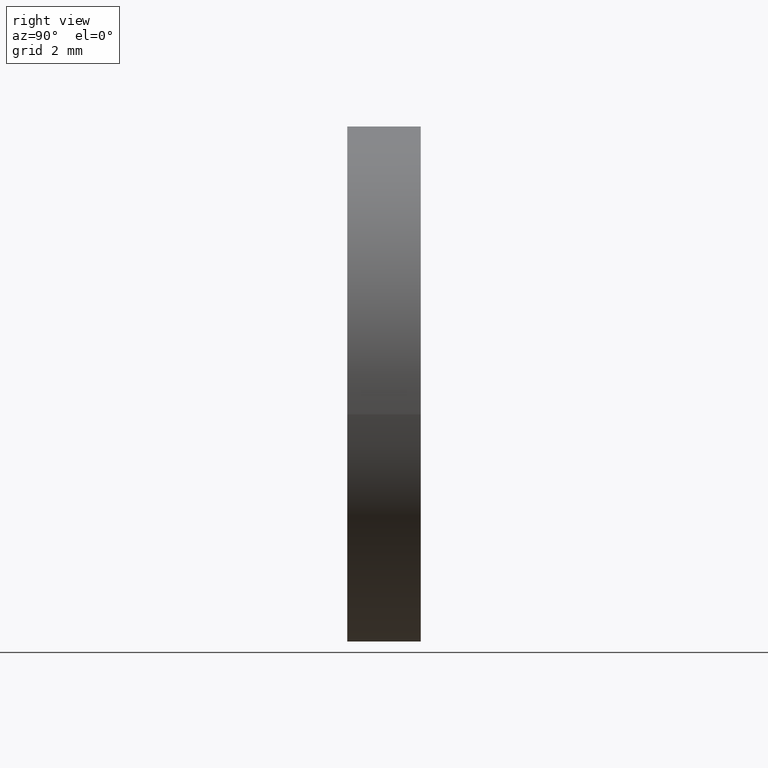
[diagram: clean part render]
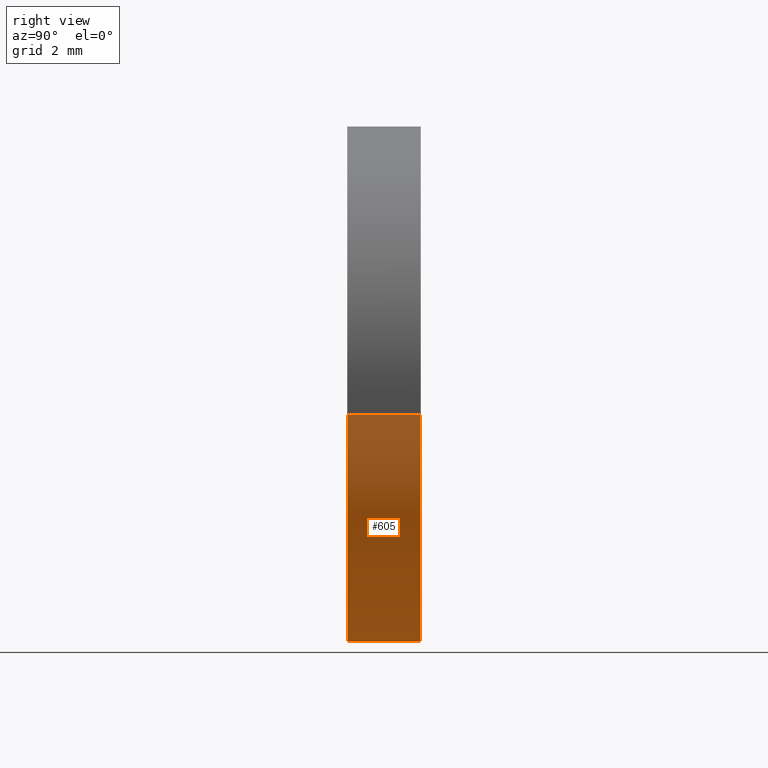
[diagram: same view with one face highlighted and labeled with its STEP entity id]
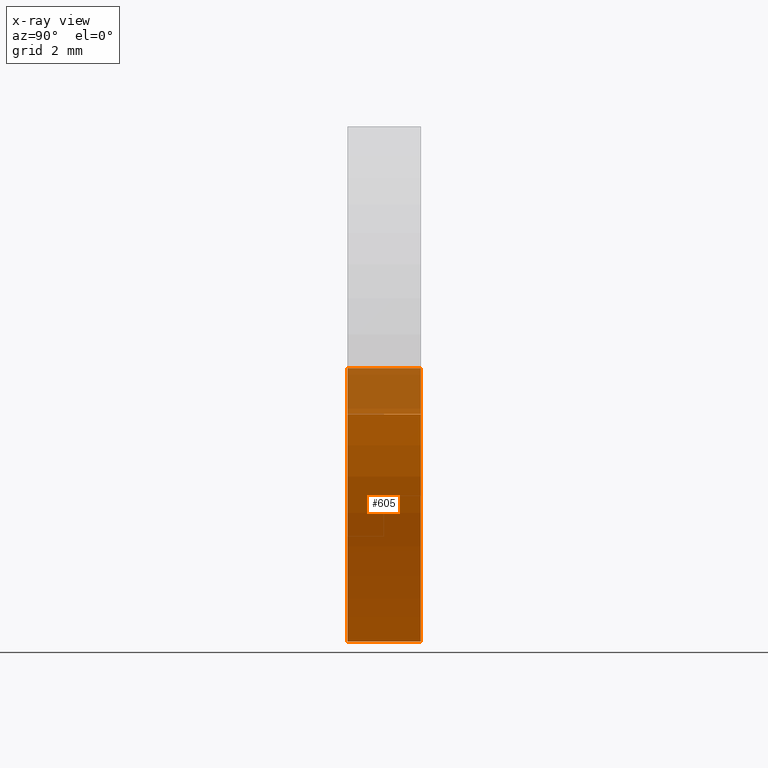
[diagram: x-ray of the same camera — body ghosted, the highlighted face saturated]
A machine part, right view. The second image highlights one B-rep face of the part: STEP entity #605.
The next image is the same camera in x-ray: the body ghosted, the highlighted face saturated — about 17% of this face is hidden behind the body in this view.
In plain terms, the highlighted face is a freeform B-spline surface patch.
Its self-contained STEP definition (entity closure, byte-faithful):
#442=CARTESIAN_POINT('',(6.951067210534475,-2.395768E-014,-0.826235217485072));
#443=VERTEX_POINT('',#442);
#461=CARTESIAN_POINT('',(-6.986943741830073,-1.567496E-014,0.427337277212387));
#462=VERTEX_POINT('',#461);
#476=CARTESIAN_POINT('',(-6.986943739989564,-2.0,0.427337307304794));
#477=VERTEX_POINT('',#476);
#478=CARTESIAN_POINT('',(-6.986943741830073,-1.567496E-014,0.427337277212387));
#479=CARTESIAN_POINT('',(-6.986943739989564,-2.0,0.427337307304794));
#480=QUASI_UNIFORM_CURVE('',1,(#478,#479),.UNSPECIFIED.,.F.,.U.);
#481=EDGE_CURVE('',#462,#477,#480,.T.);
#498=CARTESIAN_POINT('',(6.951067204199181,-2.0,-0.826235270783800));
#499=VERTEX_POINT('',#498);
#515=CARTESIAN_POINT('',(6.951067210534475,-2.395768E-014,-0.826235217485072));
#516=CARTESIAN_POINT('',(6.951067204199181,-2.0,-0.826235270783800));
#517=QUASI_UNIFORM_CURVE('',1,(#515,#516),.UNSPECIFIED.,.F.,.U.);
#518=EDGE_CURVE('',#443,#499,#517,.T.);
#523=CARTESIAN_POINT('',(-6.986943588953067,0.050000000000000,0.427339776743999));
#524=CARTESIAN_POINT('',(-7.414283365697066,0.050000000000000,-6.559603812209068));
#525=CARTESIAN_POINT('',(-0.427339776743999,0.050000000000000,-6.986943588953067));
#526=CARTESIAN_POINT('',(6.170804435876506,0.050000000000000,-7.390503377127691));
#527=CARTESIAN_POINT('',(6.951066684545665,0.050000000000000,-0.826239642597310));
#528=CARTESIAN_POINT('',(-6.986943588953067,-2.051250000000000,0.427339776743999));
#529=CARTESIAN_POINT('',(-7.414283365697066,-2.051250000000001,-6.559603812209068));
#530=CARTESIAN_POINT('',(-0.427339776743999,-2.051250000000000,-6.986943588953067));
#531=CARTESIAN_POINT('',(6.170804435876506,-2.051250000000001,-7.390503377127691));
#532=CARTESIAN_POINT('',(6.951066684545665,-2.051250000000001,-0.826239642597310));
#540=(BOUNDED_SURFACE()B_SPLINE_SURFACE(2,1,((#523,#528),(#524,#529),(#525,#530),(#526,#531),(#527,#532)),.UNSPECIFIED.,.F.,.F.,.U.)B_SPLINE_SURFACE_WITH_KNOTS((3,2,3),(2,2),(0.0,11.597979746446660,22.732040303035451),(0.0,2.101250000000000),.UNSPECIFIED.)GEOMETRIC_REPRESENTATION_ITEM()RATIONAL_B_SPLINE_SURFACE(((1.0,1.0),(0.707106781186548,0.707106781186548),(1.0,1.0),(0.718822509939086,0.718822509939086),(0.977505800795127,0.977505800795127)))REPRESENTATION_ITEM('')SURFACE());
#541=CARTESIAN_POINT('',(0.0,0.0,-7.0));
#542=VERTEX_POINT('',#541);
#543=CARTESIAN_POINT('',(0.0,0.0,-7.0));
#544=CARTESIAN_POINT('',(6.217225667462883,0.0,-7.0));
#545=CARTESIAN_POINT('',(6.951067210534475,-2.395768E-014,-0.826235217485072));
#553=(BOUNDED_CURVE()B_SPLINE_CURVE(2,(#543,#544,#545),.UNSPECIFIED.,.F.,.U.)B_SPLINE_CURVE_WITH_KNOTS((3,3),(0.0,0.229562581104653),.UNSPECIFIED.)CURVE()GEOMETRIC_REPRESENTATION_ITEM()RATIONAL_B_SPLINE_CURVE((1.0,0.731050706804535,0.956026965066855))REPRESENTATION_ITEM(''));
#554=EDGE_CURVE('',#542,#443,#553,.T.);
#555=ORIENTED_EDGE('',*,*,#554,.T.);
#556=ORIENTED_EDGE('',*,*,#518,.T.);
#557=CARTESIAN_POINT('',(0.0,-2.0,-7.0));
#558=VERTEX_POINT('',#557);
#559=CARTESIAN_POINT('',(0.0,-2.0,-7.0));
#560=CARTESIAN_POINT('',(6.217225619455447,-2.000000000000000,-7.0));
#561=CARTESIAN_POINT('',(6.951067204199181,-2.000000000000000,-0.826235270783800));
#569=(BOUNDED_CURVE()B_SPLINE_CURVE(2,(#559,#560,#561),.UNSPECIFIED.,.F.,.U.)B_SPLINE_CURVE_WITH_KNOTS((3,3),(0.0,0.229562579808786),.UNSPECIFIED.)CURVE()GEOMETRIC_REPRESENTATION_ITEM()RATIONAL_B_SPLINE_CURVE((1.0,0.731050708322738,0.956026962526900))REPRESENTATION_ITEM(''));
#570=EDGE_CURVE('',#558,#499,#569,.T.);
#571=ORIENTED_EDGE('',*,*,#570,.F.);
#572=CARTESIAN_POINT('',(-6.986943739989564,-2.0,0.427337307304794));
#573=CARTESIAN_POINT('',(-7.0,-2.000000000000000,0.213868104908519));
#574=CARTESIAN_POINT('',(-7.0,-2.0,-2.795203E-016));
#575=CARTESIAN_POINT('',(-6.999999999999999,-2.0,-6.999999999999999));
#576=CARTESIAN_POINT('',(0.0,-2.0,-7.0));
#584=(BOUNDED_CURVE()B_SPLINE_CURVE(2,(#572,#573,#574,#575,#576),.UNSPECIFIED.,.F.,.U.)B_SPLINE_CURVE_WITH_KNOTS((3,2,3),(0.739333023226263,0.750000000000000,1.0),.UNSPECIFIED.)CURVE()GEOMETRIC_REPRESENTATION_ITEM()RATIONAL_B_SPLINE_CURVE((0.976072172374189,0.987502859350927,1.0,0.707106781186547,1.0))REPRESENTATION_ITEM(''));
#585=EDGE_CURVE('',#477,#558,#584,.T.);
#586=ORIENTED_EDGE('',*,*,#585,.F.);
#587=ORIENTED_EDGE('',*,*,#481,.F.);
#588=CARTESIAN_POINT('',(-6.986943741830074,-1.567496E-014,0.427337277212387));
#589=CARTESIAN_POINT('',(-7.0,0.0,0.213868089820128));
#590=CARTESIAN_POINT('',(-7.0,0.0,-2.795203E-016));
#591=CARTESIAN_POINT('',(-6.999999999999999,0.0,-6.999999999999999));
#592=CARTESIAN_POINT('',(0.0,0.0,-7.0));
#600=(BOUNDED_CURVE()B_SPLINE_CURVE(2,(#588,#589,#590,#591,#592),.UNSPECIFIED.,.F.,.U.)B_SPLINE_CURVE_WITH_KNOTS((3,2,3),(0.739333023969413,0.750000000000000,1.0),.UNSPECIFIED.)CURVE()GEOMETRIC_REPRESENTATION_ITEM()RATIONAL_B_SPLINE_CURVE((0.976072173966902,0.987502860221582,1.0,0.707106781186547,1.0))REPRESENTATION_ITEM(''));
#601=EDGE_CURVE('',#462,#542,#600,.T.);
#602=ORIENTED_EDGE('',*,*,#601,.T.);
#603=EDGE_LOOP('',(#555,#556,#571,#586,#587,#602));
#604=FACE_OUTER_BOUND('',#603,.T.);
#605=ADVANCED_FACE('',(#604),#540,.T.);